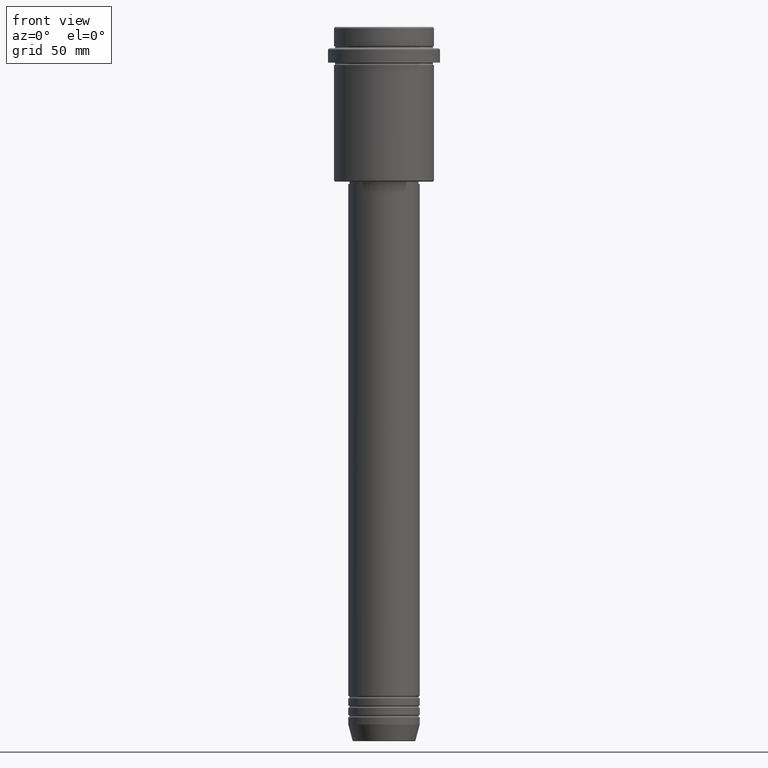
[diagram: clean part render]
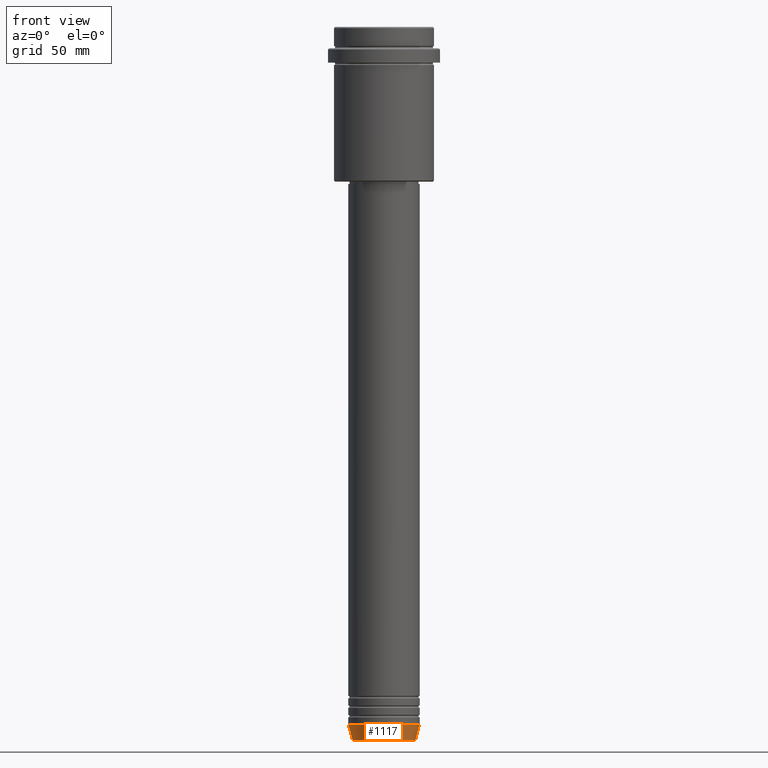
[diagram: same view with one face highlighted and labeled with its STEP entity id]
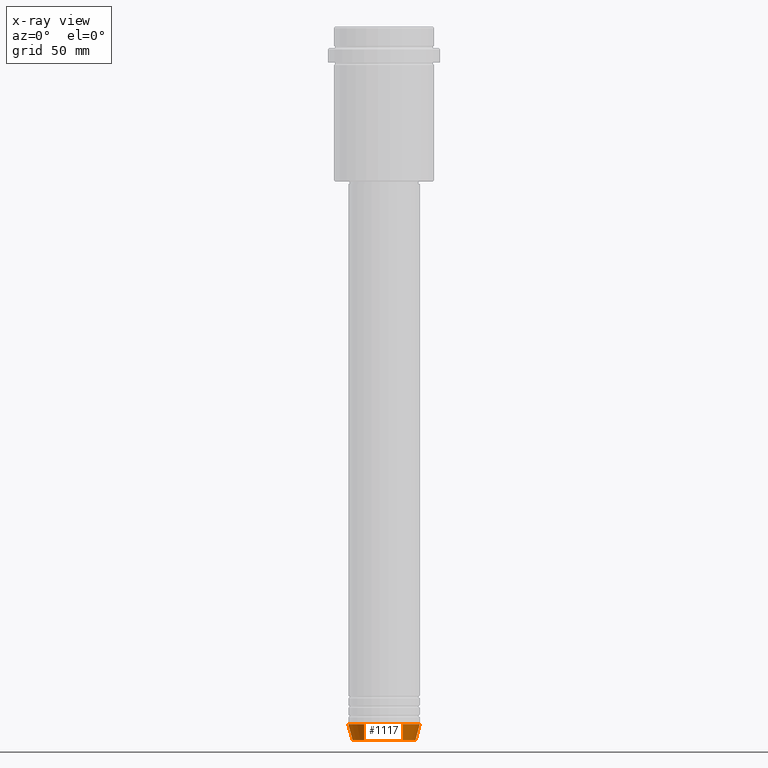
[diagram: x-ray of the same camera — body ghosted, the highlighted face saturated]
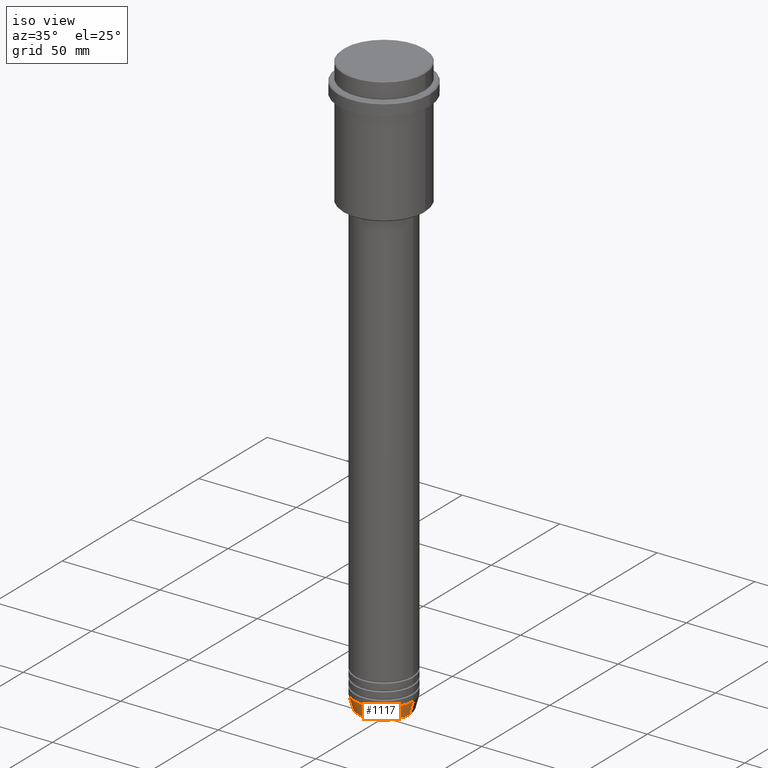
[diagram: same view with one face highlighted and labeled with its STEP entity id]
A machine part, front view. The second image highlights one B-rep face of the part: STEP entity #1117.
The next image is the same camera in x-ray: the body ghosted, the highlighted face saturated — about 0% of this face is hidden behind the body in this view.
A second angle (iso view) of the same face is appended — the face is thin or edge-on in the first view.
In plain terms, the highlighted conical surface has half-angle 15 deg.
Its self-contained STEP definition (entity closure, byte-faithful):
#69 = FACE_OUTER_BOUND ( 'NONE', #249, .T. ) ;
#240 = DIRECTION ( 'NONE',  ( 1.000000000000000000, 0.000000000000000000, 0.000000000000000000 ) ) ;
#249 = EDGE_LOOP ( 'NONE', ( #754, #1089, #1115, #1270 ) ) ;
#281 = DIRECTION ( 'NONE',  ( 1.000000000000000000, 0.000000000000000000, 0.000000000000000000 ) ) ;
#295 = VERTEX_POINT ( 'NONE', #1259 ) ;
#366 = LINE ( 'NONE', #1155, #1238 ) ;
#374 = CARTESIAN_POINT ( 'NONE',  ( 0.000000000000000000, 0.000000000000000000, -293.0000000000000000 ) ) ;
#394 = DIRECTION ( 'NONE',  ( 0.2588190451025213501, 0.000000000000000000, 0.9659258262890680902 ) ) ;
#415 = LINE ( 'NONE', #848, #1352 ) ;
#416 = VERTEX_POINT ( 'NONE', #1082 ) ;
#436 = AXIS2_PLACEMENT_3D ( 'NONE', #374, #695, #240 ) ;
#449 = EDGE_CURVE ( 'NONE', #416, #295, #415, .T. ) ;
#450 = CARTESIAN_POINT ( 'NONE',  ( 13.22365507213718772, 0.000000000000000000, -299.6294095225512706 ) ) ;
#540 = CARTESIAN_POINT ( 'NONE',  ( 15.00000000000000000, 0.000000000000000000, -293.0000000000000000 ) ) ;
#601 = DIRECTION ( 'NONE',  ( -0.000000000000000000, -0.000000000000000000, 1.000000000000000000 ) ) ;
#609 = DIRECTION ( 'NONE',  ( -0.000000000000000000, -0.000000000000000000, 1.000000000000000000 ) ) ;
#618 = CARTESIAN_POINT ( 'NONE',  ( 0.000000000000000000, 0.000000000000000000, -299.6294095225512706 ) ) ;
#667 = EDGE_CURVE ( 'NONE', #416, #1062, #1378, .T. ) ;
#695 = DIRECTION ( 'NONE',  ( -0.000000000000000000, -0.000000000000000000, 1.000000000000000000 ) ) ;
#754 = ORIENTED_EDGE ( 'NONE', *, *, #449, .F. ) ;
#842 = CIRCLE ( 'NONE', #436, 15.00000000000000000 ) ;
#847 = EDGE_CURVE ( 'NONE', #1062, #946, #366, .T. ) ;
#848 = CARTESIAN_POINT ( 'NONE',  ( -15.00000000000000000, 1.836970198721029589E-15, -293.0000000000000000 ) ) ;
#863 = CONICAL_SURFACE ( 'NONE', #979, 15.00000000000000000, 0.2617993877991500740 ) ;
#946 = VERTEX_POINT ( 'NONE', #540 ) ;
#979 = AXIS2_PLACEMENT_3D ( 'NONE', #1274, #601, #281 ) ;
#1058 = DIRECTION ( 'NONE',  ( 1.000000000000000000, 0.000000000000000000, 0.000000000000000000 ) ) ;
#1062 = VERTEX_POINT ( 'NONE', #450 ) ;
#1082 = CARTESIAN_POINT ( 'NONE',  ( -13.22365507213718772, 1.728200442216588386E-15, -299.6294095225512706 ) ) ;
#1089 = ORIENTED_EDGE ( 'NONE', *, *, #667, .T. ) ;
#1115 = ORIENTED_EDGE ( 'NONE', *, *, #847, .T. ) ;
#1117 = ADVANCED_FACE ( 'NONE', ( #69 ), #863, .T. ) ;
#1155 = CARTESIAN_POINT ( 'NONE',  ( 15.00000000000000000, 0.000000000000000000, -293.0000000000000000 ) ) ;
#1238 = VECTOR ( 'NONE', #394, 1000.000000000000000 ) ;
#1259 = CARTESIAN_POINT ( 'NONE',  ( -15.00000000000000000, 1.836970198721029589E-15, -293.0000000000000000 ) ) ;
#1270 = ORIENTED_EDGE ( 'NONE', *, *, #1332, .F. ) ;
#1274 = CARTESIAN_POINT ( 'NONE',  ( 0.000000000000000000, 0.000000000000000000, -293.0000000000000000 ) ) ;
#1297 = DIRECTION ( 'NONE',  ( -0.2588190451025213501, 3.169619151431772337E-17, 0.9659258262890680902 ) ) ;
#1332 = EDGE_CURVE ( 'NONE', #295, #946, #842, .T. ) ;
#1352 = VECTOR ( 'NONE', #1297, 1000.000000000000000 ) ;
#1378 = CIRCLE ( 'NONE', #1399, 13.22365507213718772 ) ;
#1399 = AXIS2_PLACEMENT_3D ( 'NONE', #618, #609, #1058 ) ;